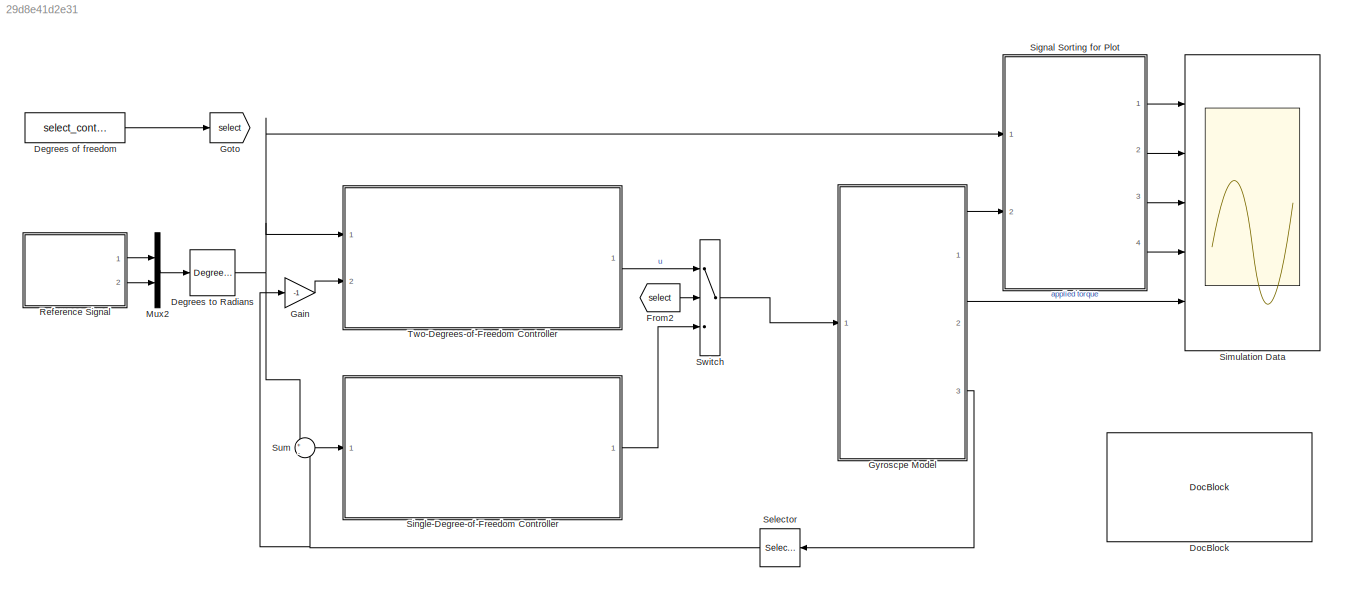
MODEL slx_29d8e41d2e31
KIND model
CONFIG AbsTol = auto
CONFIG FixedStep = ts
CONFIG InitFcn = InitGyro
CONFIG MaxStep = auto
CONFIG MinStep = auto
CONFIG RelTol = 1e-6
CONFIG SampleTimeConstraint = Unconstrained
CONFIG Solver = ode3
CONFIG SolverMode = Auto
CONFIG SolverName = ode3
CONFIG StartTime = 0.0
CONFIG StopTime = 70.000424
BLOCK [Constant] Degrees of freedom
  Value = select_controller
BLOCK [Reference] Degrees to Radians  REF=simulink_extras/Transformations/Degrees to
Radians
  Ports = [1, 1]
  SourceBlock = simulink_extras/Transformations/Degrees to\nRadians
  SourceType = DegreesToRadians
BLOCK [Reference] DocBlock  REF=simulink/Model-Wide
Utilities/DocBlock
  DocumentType = Text
  Ports = []
  SourceBlock = simulink/Model-Wide\nUtilities/DocBlock
  SourceType = DocBlock
  UserDataPersistent = on
BLOCK [From] From2
  GotoTag = select
BLOCK [Gain] Gain
  Gain = -1
  OutDataTypeStr = Inherit: Inherit via internal rule
  ParamDataTypeStr = Inherit: Inherit via internal rule
  SaturateOnIntegerOverflow = off
BLOCK [Goto] Goto
  GotoTag = select
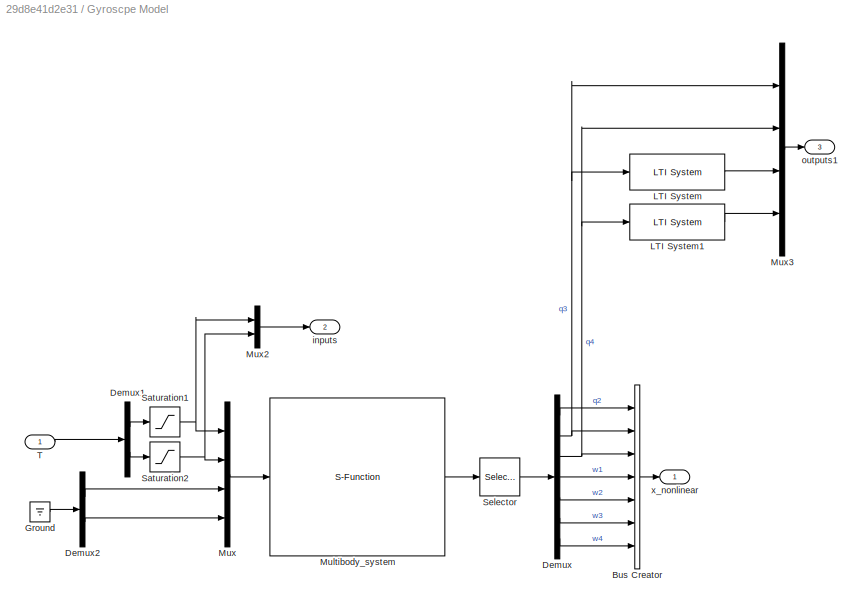
BLOCK [SubSystem] Gyroscpe Model
  Ports = [1, 3]
  RequestExecContextInheritance = off
BLOCK [BusCreator] Gyroscpe Model/Bus Creator
  DisplayOption = bar
  Inputs = 7
  Ports = [7, 1]
BLOCK [Demux] Gyroscpe Model/Demux
  DisplayOption = bar
  Outputs = 7
  Ports = [1, 7]
BLOCK [Demux] Gyroscpe Model/Demux1
  DisplayOption = bar
  Outputs = 2
  Ports = [1, 2]
BLOCK [Demux] Gyroscpe Model/Demux2
  DisplayOption = bar
  Outputs = 2
  Ports = [1, 2]
BLOCK [Ground] Gyroscpe Model/Ground
BLOCK [Reference] Gyroscpe Model/LTI System  REF=cstblocks/LTI System
  IC = []
  Ports = [1, 1]
  SourceBlock = cstblocks/LTI System
  SourceType = LTI Block
  sys = diff_filter
BLOCK [Reference] Gyroscpe Model/LTI System1  REF=cstblocks/LTI System
  IC = []
  Ports = [1, 1]
  SourceBlock = cstblocks/LTI System
  SourceType = LTI Block
  sys = diff_filter
BLOCK [S-Function] Gyroscpe Model/Multibody_system
  EnableBusSupport = off
  FunctionName = Multibody_system
  Parameters = paraStruct, initY, initDy
  Ports = [1, 1]
BLOCK [Mux] Gyroscpe Model/Mux
  DisplayOption = bar
  Ports = [4, 1]
BLOCK [Mux] Gyroscpe Model/Mux2
  DisplayOption = bar
  Inputs = 2
  Ports = [2, 1]
BLOCK [Mux] Gyroscpe Model/Mux3
  DisplayOption = bar
  Ports = [4, 1]
BLOCK [Saturate] Gyroscpe Model/Saturation1
  InputPortMap = u0
  LowerLimit = -0.666
  Ports = [1, 1]
  UpperLimit = 0.666
BLOCK [Saturate] Gyroscpe Model/Saturation2
  InputPortMap = u0
  LowerLimit = -2.44
  Ports = [1, 1]
  UpperLimit = 2.44
BLOCK [Selector] Gyroscpe Model/Selector
  Indices = 2:8
  Ports = [1, 1]
BLOCK [Inport] Gyroscpe Model/T
  IconDisplay = Port number
BLOCK [Outport] Gyroscpe Model/inputs
  IconDisplay = Port number
  Port = 2
BLOCK [Outport] Gyroscpe Model/outputs1
  IconDisplay = Port number
  Port = 3
BLOCK [Outport] Gyroscpe Model/x_nonlinear
  IconDisplay = Port number
BLOCK [Mux] Mux2
  DisplayOption = bar
  Inputs = 2
  Ports = [2, 1]
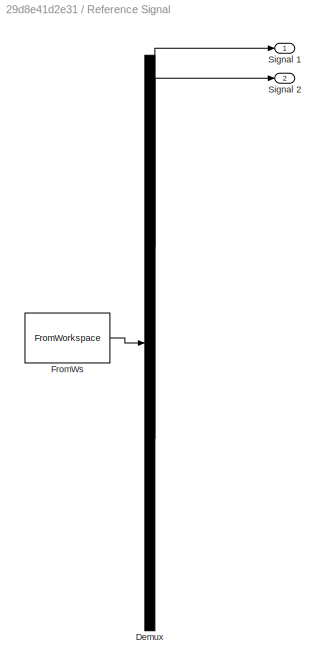
BLOCK [SubSystem] Reference Signal
  ClipboardFcn = sigbuilder_block('clipboard');
  CloseFcn = sigbuilder_block('close');
  ContinueFcn = sigbuilder_block('continue')
  CopyFcn = sigbuilder_block('copy');
  DeleteFcn = sigbuilder_block('delete');
  LoadFcn = sigbuilder_block('load');
  MaskHideContents = on
  ModelCloseFcn = sigbuilder_block('modelClose');
  NameChangeFcn = sigbuilder_block('namechange');
  OpenFcn = sigbuilder_block('open',[6 0 1428 718.5 ]);
  PauseFcn = sigbuilder_block('pause')
  Ports = [0, 2]
  PreSaveFcn = sigbuilder_block('preSave');
  RequestExecContextInheritance = off
  StartFcn = sigbuilder_block('start');
  StopFcn = sigbuilder_block('stop');
  Tag = STV Subsys
BLOCK [Demux] Reference Signal/Demux
  Outputs = 2
  Ports = [1, 2]
  Tag = STV Demux
BLOCK [FromWorkspace] Reference Signal/FromWs
  SampleTime = 0
  Tag = STV FromWs
  VariableName = tuvar
  ZeroCross = on
BLOCK [Outport] Reference Signal/Signal 1
  IconDisplay = Port number
  Tag = STV Outport
BLOCK [Outport] Reference Signal/Signal 2
  IconDisplay = Port number
  Port = 2
  Tag = STV Outport
BLOCK [Selector] Selector
  Indices = [1 2]
  InputPortWidth = 4
  Ports = [1, 1]
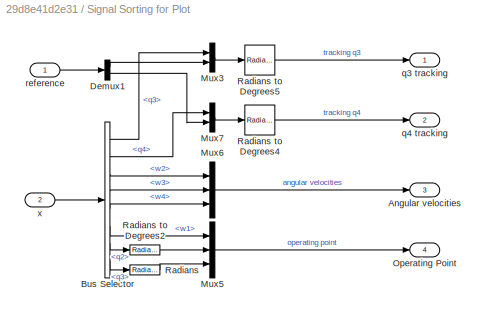
BLOCK [SubSystem] Signal Sorting for Plot
  Ports = [2, 4]
  RequestExecContextInheritance = off
BLOCK [Outport] Signal Sorting for Plot/Angular velocities
  IconDisplay = Port number
  Port = 3
BLOCK [BusSelector] Signal Sorting for Plot/Bus Selector
  OutputSignals = q3,q4,w2,w3,w4,w1,q2,q3
  Ports = [1, 8]
BLOCK [Demux] Signal Sorting for Plot/Demux1
  DisplayOption = bar
  Outputs = 2
  Ports = [1, 2]
BLOCK [Mux] Signal Sorting for Plot/Mux3
  DisplayOption = bar
  Inputs = 2
  Ports = [2, 1]
BLOCK [Mux] Signal Sorting for Plot/Mux5
  DisplayOption = bar
  Inputs = 3
  Ports = [3, 1]
BLOCK [Mux] Signal Sorting for Plot/Mux6
  DisplayOption = bar
  Inputs = 3
  Ports = [3, 1]
BLOCK [Mux] Signal Sorting for Plot/Mux7
  DisplayOption = bar
  Inputs = 2
  Ports = [2, 1]
BLOCK [Outport] Signal Sorting for Plot/Operating Point
  IconDisplay = Port number
  Port = 4
BLOCK [Reference] Signal Sorting for Plot/Radians   REF=simulink_extras/Transformations/Radians
to Degrees
  Ports = [1, 1]
  SourceBlock = simulink_extras/Transformations/Radians\nto Degrees
  SourceType = RadiansToDegrees
BLOCK [Reference] Signal Sorting for Plot/Radians to Degrees2  REF=simulink_extras/Transformations/Radians
to Degrees
  Ports = [1, 1]
  SourceBlock = simulink_extras/Transformations/Radians\nto Degrees
  SourceType = RadiansToDegrees
BLOCK [Reference] Signal Sorting for Plot/Radians to Degrees4  REF=simulink_extras/Transformations/Radians
to Degrees
  Ports = [1, 1]
  SourceBlock = simulink_extras/Transformations/Radians\nto Degrees
  SourceType = RadiansToDegrees
BLOCK [Reference] Signal Sorting for Plot/Radians to Degrees5  REF=simulink_extras/Transformations/Radians
to Degrees
  Ports = [1, 1]
  SourceBlock = simulink_extras/Transformations/Radians\nto Degrees
  SourceType = RadiansToDegrees
BLOCK [Outport] Signal Sorting for Plot/q3 tracking
  IconDisplay = Port number
BLOCK [Outport] Signal Sorting for Plot/q4 tracking
  IconDisplay = Port number
  Port = 2
BLOCK [Inport] Signal Sorting for Plot/reference
  IconDisplay = Port number
BLOCK [Inport] Signal Sorting for Plot/x
  IconDisplay = Port number
  Port = 2
BLOCK [Scope] Simulation Data
  DataFormat = StructureWithTime
  Floating = off
  LimitDataPoints = off
  NumInputPorts = 5
  Ports = [5]
  SampleTime = 0
  SaveName = simdata
  SaveToWorkspace = on
  ShowLegends = off
  TickLabels = on
  TimeRange = 70.000424
  YMax = 10~100~2~60~2
  YMin = -10~-100~-2~-20~-2
  ZoomMode = yonly
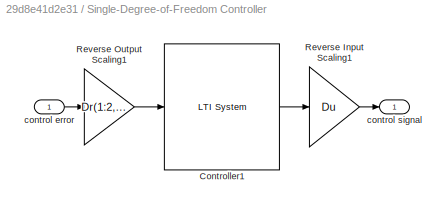
BLOCK [SubSystem] Single-Degree-of-Freedom Controller
  Ports = [1, 1]
  RequestExecContextInheritance = off
BLOCK [Reference] Single-Degree-of-Freedom Controller/Controller1  REF=cstblocks/LTI System
  IC = []
  Ports = [1, 1]
  SourceBlock = cstblocks/LTI System
  SourceType = LTI Block
  sys = K1
BLOCK [Gain] Single-Degree-of-Freedom Controller/Reverse Input Scaling1
  Gain = Du
  Multiplication = Matrix(K*u)
  OutDataTypeStr = Inherit: Inherit via internal rule
  ParamDataTypeStr = Inherit: Inherit via internal rule
  SaturateOnIntegerOverflow = off
BLOCK [Gain] Single-Degree-of-Freedom Controller/Reverse Output Scaling1
  Gain = Dr(1:2,1:2)^-1
  Multiplication = Matrix(K*u)
  OutDataTypeStr = Inherit: Inherit via internal rule
  ParamDataTypeStr = Inherit: Inherit via internal rule
  SaturateOnIntegerOverflow = off
BLOCK [Inport] Single-Degree-of-Freedom Controller/control error
  IconDisplay = Port number
BLOCK [Outport] Single-Degree-of-Freedom Controller/control signal
  IconDisplay = Port number
BLOCK [Sum] Sum
  IconShape = round
  InputSameDT = off
  Inputs = +|-
  OutDataTypeStr = Inherit: Inherit via internal rule
  Ports = [2, 1]
  SaturateOnIntegerOverflow = off
BLOCK [Switch] Switch
  Criteria = u2 > Threshold
  InputSameDT = off
  SaturateOnIntegerOverflow = off
  Threshold = 1
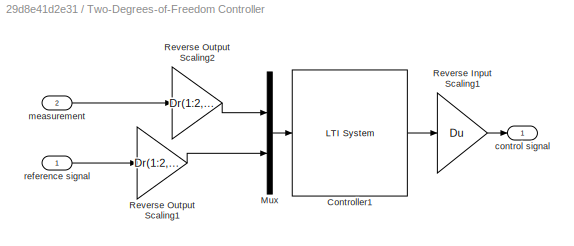
BLOCK [SubSystem] Two-Degrees-of-Freedom Controller
  Ports = [2, 1]
  RequestExecContextInheritance = off
BLOCK [Reference] Two-Degrees-of-Freedom Controller/Controller1  REF=cstblocks/LTI System
  IC = []
  Ports = [1, 1]
  SourceBlock = cstblocks/LTI System
  SourceType = LTI Block
  sys = K2
BLOCK [Mux] Two-Degrees-of-Freedom Controller/Mux
  DisplayOption = bar
  Inputs = 2
  Ports = [2, 1]
BLOCK [Gain] Two-Degrees-of-Freedom Controller/Reverse Input Scaling1
  Gain = Du
  Multiplication = Matrix(K*u)
  OutDataTypeStr = Inherit: Inherit via internal rule
  ParamDataTypeStr = Inherit: Inherit via internal rule
  SaturateOnIntegerOverflow = off
BLOCK [Gain] Two-Degrees-of-Freedom Controller/Reverse Output Scaling1
  Gain = Dr(1:2,1:2)^-1
  Multiplication = Matrix(K*u)
  OutDataTypeStr = Inherit: Inherit via internal rule
  ParamDataTypeStr = Inherit: Inherit via internal rule
  SaturateOnIntegerOverflow = off
BLOCK [Gain] Two-Degrees-of-Freedom Controller/Reverse Output Scaling2
  Gain = Dr(1:2,1:2)^-1
  Multiplication = Matrix(K*u)
  OutDataTypeStr = Inherit: Inherit via internal rule
  ParamDataTypeStr = Inherit: Inherit via internal rule
  SaturateOnIntegerOverflow = off
BLOCK [Outport] Two-Degrees-of-Freedom Controller/control signal
  IconDisplay = Port number
BLOCK [Inport] Two-Degrees-of-Freedom Controller/measurement
  IconDisplay = Port number
  Port = 2
BLOCK [Inport] Two-Degrees-of-Freedom Controller/reference signal
  IconDisplay = Port number
LINE Degrees of freedom:1 -> Goto:1
NET Degrees to Radians:1 -> Signal Sorting for Plot:1, Sum:1, Two-Degrees-of-Freedom Controller:1
LINE From2:1 -> Switch:2
LINE Gain:1 -> Two-Degrees-of-Freedom Controller:2
LINE Gyroscpe Model/Bus Creator:1 -> Gyroscpe Model/x_nonlinear:1
LINE Gyroscpe Model/Demux1:1 -> Gyroscpe Model/Saturation1:1
LINE Gyroscpe Model/Demux1:2 -> Gyroscpe Model/Saturation2:1
LINE Gyroscpe Model/Demux2:1 -> Gyroscpe Model/Mux:3
LINE Gyroscpe Model/Demux2:2 -> Gyroscpe Model/Mux:4
LINE Gyroscpe Model/Demux:1 -> Gyroscpe Model/Bus Creator:1
NET Gyroscpe Model/Demux:2 -> Gyroscpe Model/Bus Creator:2, Gyroscpe Model/LTI System:1, Gyroscpe Model/Mux3:1
NET Gyroscpe Model/Demux:3 -> Gyroscpe Model/Bus Creator:3, Gyroscpe Model/LTI System1:1, Gyroscpe Model/Mux3:2
LINE Gyroscpe Model/Demux:4 -> Gyroscpe Model/Bus Creator:4
LINE Gyroscpe Model/Demux:5 -> Gyroscpe Model/Bus Creator:5
LINE Gyroscpe Model/Demux:6 -> Gyroscpe Model/Bus Creator:6
LINE Gyroscpe Model/Demux:7 -> Gyroscpe Model/Bus Creator:7
LINE Gyroscpe Model/Ground:1 -> Gyroscpe Model/Demux2:1
LINE Gyroscpe Model/LTI System1:1 -> Gyroscpe Model/Mux3:4
LINE Gyroscpe Model/LTI System:1 -> Gyroscpe Model/Mux3:3
LINE Gyroscpe Model/Multibody_system:1 -> Gyroscpe Model/Selector:1
LINE Gyroscpe Model/Mux2:1 -> Gyroscpe Model/inputs:1
LINE Gyroscpe Model/Mux3:1 -> Gyroscpe Model/outputs1:1
LINE Gyroscpe Model/Mux:1 -> Gyroscpe Model/Multibody_system:1
NET Gyroscpe Model/Saturation1:1 -> Gyroscpe Model/Mux2:1, Gyroscpe Model/Mux:1
NET Gyroscpe Model/Saturation2:1 -> Gyroscpe Model/Mux2:2, Gyroscpe Model/Mux:2
LINE Gyroscpe Model/Selector:1 -> Gyroscpe Model/Demux:1
LINE Gyroscpe Model/T:1 -> Gyroscpe Model/Demux1:1
LINE Gyroscpe Model:1 -> Signal Sorting for Plot:2
LINE Gyroscpe Model:2 -> Simulation Data:5
LINE Gyroscpe Model:3 -> Selector:1
LINE Mux2:1 -> Degrees to Radians:1
LINE Reference Signal:1 -> Mux2:1
LINE Reference Signal:2 -> Mux2:2
NET Selector:1 -> Gain:1, Sum:2
LINE Signal Sorting for Plot/Bus Selector:1 -> Signal Sorting for Plot/Mux3:1
LINE Signal Sorting for Plot/Bus Selector:2 -> Signal Sorting for Plot/Mux7:1
LINE Signal Sorting for Plot/Bus Selector:3 -> Signal Sorting for Plot/Mux6:1
LINE Signal Sorting for Plot/Bus Selector:4 -> Signal Sorting for Plot/Mux6:2
LINE Signal Sorting for Plot/Bus Selector:5 -> Signal Sorting for Plot/Mux6:3
LINE Signal Sorting for Plot/Bus Selector:6 -> Signal Sorting for Plot/Mux5:1
LINE Signal Sorting for Plot/Bus Selector:7 -> Signal Sorting for Plot/Radians to Degrees2:1
LINE Signal Sorting for Plot/Bus Selector:8 -> Signal Sorting for Plot/Radians :1
LINE Signal Sorting for Plot/Demux1:1 -> Signal Sorting for Plot/Mux3:2
LINE Signal Sorting for Plot/Demux1:2 -> Signal Sorting for Plot/Mux7:2
LINE Signal Sorting for Plot/Mux3:1 -> Signal Sorting for Plot/Radians to Degrees5:1
LINE Signal Sorting for Plot/Mux5:1 -> Signal Sorting for Plot/Operating Point:1
LINE Signal Sorting for Plot/Mux6:1 -> Signal Sorting for Plot/Angular velocities:1
LINE Signal Sorting for Plot/Mux7:1 -> Signal Sorting for Plot/Radians to Degrees4:1
LINE Signal Sorting for Plot/Radians :1 -> Signal Sorting for Plot/Mux5:3
LINE Signal Sorting for Plot/Radians to Degrees2:1 -> Signal Sorting for Plot/Mux5:2
LINE Signal Sorting for Plot/Radians to Degrees4:1 -> Signal Sorting for Plot/q4 tracking:1
LINE Signal Sorting for Plot/Radians to Degrees5:1 -> Signal Sorting for Plot/q3 tracking:1
LINE Signal Sorting for Plot/reference:1 -> Signal Sorting for Plot/Demux1:1
LINE Signal Sorting for Plot/x:1 -> Signal Sorting for Plot/Bus Selector:1
LINE Signal Sorting for Plot:1 -> Simulation Data:1
LINE Signal Sorting for Plot:2 -> Simulation Data:2
LINE Signal Sorting for Plot:3 -> Simulation Data:3
LINE Signal Sorting for Plot:4 -> Simulation Data:4
LINE Single-Degree-of-Freedom Controller/Controller1:1 -> Single-Degree-of-Freedom Controller/Reverse Input Scaling1:1
LINE Single-Degree-of-Freedom Controller/Reverse Input Scaling1:1 -> Single-Degree-of-Freedom Controller/control signal:1
LINE Single-Degree-of-Freedom Controller/Reverse Output Scaling1:1 -> Single-Degree-of-Freedom Controller/Controller1:1
LINE Single-Degree-of-Freedom Controller/control error:1 -> Single-Degree-of-Freedom Controller/Reverse Output Scaling1:1
LINE Single-Degree-of-Freedom Controller:1 -> Switch:3
LINE Sum:1 -> Single-Degree-of-Freedom Controller:1
LINE Switch:1 -> Gyroscpe Model:1
LINE Two-Degrees-of-Freedom Controller/Controller1:1 -> Two-Degrees-of-Freedom Controller/Reverse Input Scaling1:1
LINE Two-Degrees-of-Freedom Controller/Mux:1 -> Two-Degrees-of-Freedom Controller/Controller1:1
LINE Two-Degrees-of-Freedom Controller/Reverse Input Scaling1:1 -> Two-Degrees-of-Freedom Controller/control signal:1
LINE Two-Degrees-of-Freedom Controller/Reverse Output Scaling1:1 -> Two-Degrees-of-Freedom Controller/Mux:2
LINE Two-Degrees-of-Freedom Controller/Reverse Output Scaling2:1 -> Two-Degrees-of-Freedom Controller/Mux:1
LINE Two-Degrees-of-Freedom Controller/measurement:1 -> Two-Degrees-of-Freedom Controller/Reverse Output Scaling2:1
LINE Two-Degrees-of-Freedom Controller/reference signal:1 -> Two-Degrees-of-Freedom Controller/Reverse Output Scaling1:1
LINE Two-Degrees-of-Freedom Controller:1 -> Switch:1
note: NET lines group one-source signal fan-out (src -> all destinations, sorted); 1:1 wires keep LINE
